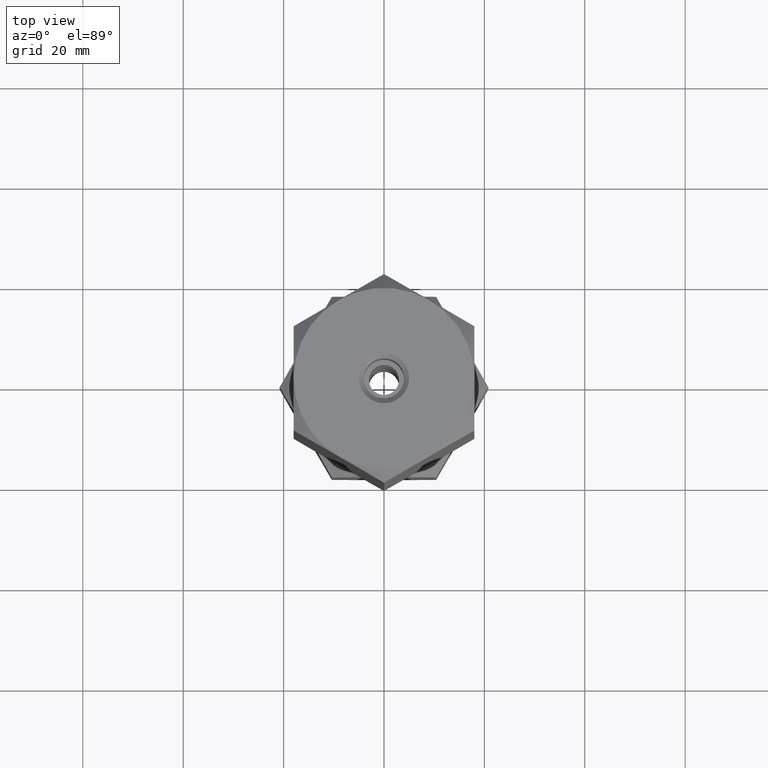
[diagram: clean part render]
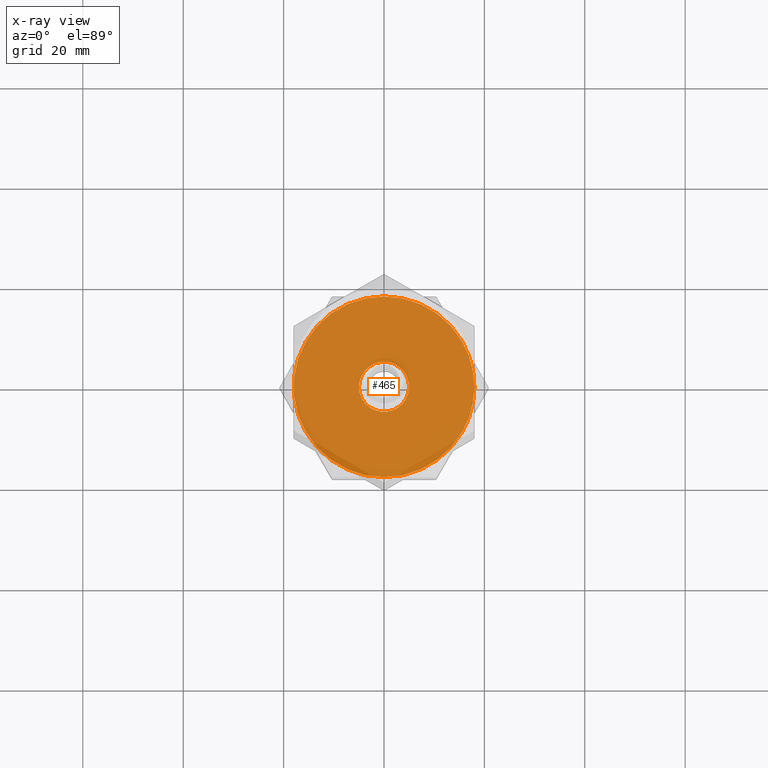
[diagram: x-ray — body ghosted, one internal face saturated and labeled with its STEP entity id]
A machine part, top view, then the same camera in x-ray: the body is ghosted and one INTERNAL B-rep face — a face not visible from any outside direction — is saturated and labeled: STEP entity #465.
In plain terms, the highlighted planar face has unit normal (0, 0, 1).
Its self-contained STEP definition (entity closure, byte-faithful):
#9 = DIRECTION ( 'NONE',  ( 0.000000000000000000, 0.000000000000000000, -1.000000000000000000 ) ) ;
#63 = CARTESIAN_POINT ( 'NONE',  ( 3.004629197474318851E-15, -18.00000000000000000, 33.33333333333330017 ) ) ;
#88 = CARTESIAN_POINT ( 'NONE',  ( 0.000000000000000000, 18.00000000000000000, 33.33333333333330017 ) ) ;
#109 = ORIENTED_EDGE ( 'NONE', *, *, #999, .T. ) ;
#125 = ORIENTED_EDGE ( 'NONE', *, *, #165, .T. ) ;
#126 = CARTESIAN_POINT ( 'NONE',  ( 0.000000000000000000, 0.000000000000000000, 33.33333333333330017 ) ) ;
#152 = CIRCLE ( 'NONE', #582, 18.00000000000000000 ) ;
#165 = EDGE_CURVE ( 'NONE', #1543, #1620, #523, .T. ) ;
#186 = AXIS2_PLACEMENT_3D ( 'NONE', #733, #1995, #573 ) ;
#209 = CARTESIAN_POINT ( 'NONE',  ( -15.58845726811989607, 8.999999999999996447, 33.33333333333330017 ) ) ;
#214 = VERTEX_POINT ( 'NONE', #423 ) ;
#230 = CARTESIAN_POINT ( 'NONE',  ( 0.000000000000000000, 0.000000000000000000, 33.33333333333330017 ) ) ;
#238 = CARTESIAN_POINT ( 'NONE',  ( 0.000000000000000000, 0.000000000000000000, 33.33333333333330017 ) ) ;
#245 = VERTEX_POINT ( 'NONE', #88 ) ;
#246 = PLANE ( 'NONE',  #1421 ) ;
#263 = CARTESIAN_POINT ( 'NONE',  ( 0.000000000000000000, 0.000000000000000000, 33.33333333333330017 ) ) ;
#276 = VERTEX_POINT ( 'NONE', #1254 ) ;
#310 = CARTESIAN_POINT ( 'NONE',  ( 0.000000000000000000, 0.000000000000000000, 33.33333333333330017 ) ) ;
#376 = DIRECTION ( 'NONE',  ( 1.000000000000000000, 0.000000000000000000, 0.000000000000000000 ) ) ;
#423 = CARTESIAN_POINT ( 'NONE',  ( -5.000000000000000000, 0.000000000000000000, 33.33333333333330017 ) ) ;
#444 = DIRECTION ( 'NONE',  ( 1.000000000000000000, 0.000000000000000000, 0.000000000000000000 ) ) ;
#445 = EDGE_CURVE ( 'NONE', #214, #1225, #495, .T. ) ;
#465 = ADVANCED_FACE ( 'NONE', ( #897, #1505 ), #246, .T. ) ;
#495 = CIRCLE ( 'NONE', #1716, 5.000000000000000000 ) ;
#504 = EDGE_CURVE ( 'NONE', #245, #1678, #1948, .T. ) ;
#523 = CIRCLE ( 'NONE', #1019, 18.00000000000000000 ) ;
#524 = DIRECTION ( 'NONE',  ( -1.000000000000000000, 0.000000000000000000, 0.000000000000000000 ) ) ;
#563 = EDGE_LOOP ( 'NONE', ( #109, #125, #667, #1215, #1369, #801, #1820 ) ) ;
#573 = DIRECTION ( 'NONE',  ( 1.000000000000000000, 0.000000000000000000, 0.000000000000000000 ) ) ;
#582 = AXIS2_PLACEMENT_3D ( 'NONE', #126, #601, #444 ) ;
#586 = AXIS2_PLACEMENT_3D ( 'NONE', #823, #9, #524 ) ;
#601 = DIRECTION ( 'NONE',  ( 0.000000000000000000, 0.000000000000000000, 1.000000000000000000 ) ) ;
#606 = CARTESIAN_POINT ( 'NONE',  ( 18.00000000000000000, 0.000000000000000000, 33.33333333333330017 ) ) ;
#653 = CIRCLE ( 'NONE', #1807, 18.00000000000000000 ) ;
#667 = ORIENTED_EDGE ( 'NONE', *, *, #1280, .T. ) ;
#671 = DIRECTION ( 'NONE',  ( -1.000000000000000000, 0.000000000000000000, 0.000000000000000000 ) ) ;
#712 = CARTESIAN_POINT ( 'NONE',  ( 0.000000000000000000, 0.000000000000000000, 33.33333333333330017 ) ) ;
#733 = CARTESIAN_POINT ( 'NONE',  ( 0.000000000000000000, 0.000000000000000000, 33.33333333333330017 ) ) ;
#774 = VERTEX_POINT ( 'NONE', #63 ) ;
#801 = ORIENTED_EDGE ( 'NONE', *, *, #1880, .T. ) ;
#823 = CARTESIAN_POINT ( 'NONE',  ( 0.000000000000000000, 0.000000000000000000, 33.33333333333330017 ) ) ;
#836 = EDGE_LOOP ( 'NONE', ( #1758, #1877 ) ) ;
#847 = CIRCLE ( 'NONE', #1057, 18.00000000000000000 ) ;
#888 = DIRECTION ( 'NONE',  ( 1.000000000000000000, 0.000000000000000000, -0.000000000000000000 ) ) ;
#897 = FACE_BOUND ( 'NONE', #836, .T. ) ;
#905 = DIRECTION ( 'NONE',  ( 1.000000000000000000, 0.000000000000000000, 0.000000000000000000 ) ) ;
#913 = DIRECTION ( 'NONE',  ( 1.000000000000000000, 0.000000000000000000, 0.000000000000000000 ) ) ;
#917 = DIRECTION ( 'NONE',  ( 0.000000000000000000, 0.000000000000000000, 1.000000000000000000 ) ) ;
#962 = CARTESIAN_POINT ( 'NONE',  ( 15.58845726811989252, 9.000000000000003553, 33.33333333333330017 ) ) ;
#999 = EDGE_CURVE ( 'NONE', #1984, #1543, #847, .T. ) ;
#1000 = EDGE_CURVE ( 'NONE', #774, #1984, #152, .T. ) ;
#1019 = AXIS2_PLACEMENT_3D ( 'NONE', #712, #1333, #376 ) ;
#1057 = AXIS2_PLACEMENT_3D ( 'NONE', #1862, #1698, #913 ) ;
#1088 = DIRECTION ( 'NONE',  ( 1.000000000000000000, 0.000000000000000000, 0.000000000000000000 ) ) ;
#1174 = CIRCLE ( 'NONE', #1973, 18.00000000000000000 ) ;
#1215 = ORIENTED_EDGE ( 'NONE', *, *, #504, .T. ) ;
#1224 = DIRECTION ( 'NONE',  ( 0.000000000000000000, 0.000000000000000000, 1.000000000000000000 ) ) ;
#1225 = VERTEX_POINT ( 'NONE', #2011 ) ;
#1239 = DIRECTION ( 'NONE',  ( 0.000000000000000000, 0.000000000000000000, 1.000000000000000000 ) ) ;
#1254 = CARTESIAN_POINT ( 'NONE',  ( -15.58845726811989607, -9.000000000000003553, 33.33333333333330017 ) ) ;
#1280 = EDGE_CURVE ( 'NONE', #1620, #245, #1174, .T. ) ;
#1333 = DIRECTION ( 'NONE',  ( 0.000000000000000000, 0.000000000000000000, 1.000000000000000000 ) ) ;
#1369 = ORIENTED_EDGE ( 'NONE', *, *, #1430, .T. ) ;
#1404 = CARTESIAN_POINT ( 'NONE',  ( 0.000000000000000000, 0.000000000000000000, 33.33333333333330017 ) ) ;
#1421 = AXIS2_PLACEMENT_3D ( 'NONE', #238, #1669, #888 ) ;
#1430 = EDGE_CURVE ( 'NONE', #1678, #276, #1710, .T. ) ;
#1505 = FACE_OUTER_BOUND ( 'NONE', #563, .T. ) ;
#1543 = VERTEX_POINT ( 'NONE', #606 ) ;
#1620 = VERTEX_POINT ( 'NONE', #962 ) ;
#1669 = DIRECTION ( 'NONE',  ( 0.000000000000000000, 0.000000000000000000, 1.000000000000000000 ) ) ;
#1678 = VERTEX_POINT ( 'NONE', #209 ) ;
#1683 = DIRECTION ( 'NONE',  ( 0.000000000000000000, 0.000000000000000000, -1.000000000000000000 ) ) ;
#1698 = DIRECTION ( 'NONE',  ( 0.000000000000000000, 0.000000000000000000, 1.000000000000000000 ) ) ;
#1710 = CIRCLE ( 'NONE', #186, 18.00000000000000000 ) ;
#1714 = CIRCLE ( 'NONE', #586, 5.000000000000000000 ) ;
#1716 = AXIS2_PLACEMENT_3D ( 'NONE', #230, #1683, #671 ) ;
#1758 = ORIENTED_EDGE ( 'NONE', *, *, #445, .T. ) ;
#1807 = AXIS2_PLACEMENT_3D ( 'NONE', #1404, #1224, #905 ) ;
#1820 = ORIENTED_EDGE ( 'NONE', *, *, #1000, .T. ) ;
#1862 = CARTESIAN_POINT ( 'NONE',  ( 0.000000000000000000, 0.000000000000000000, 33.33333333333330017 ) ) ;
#1869 = DIRECTION ( 'NONE',  ( 1.000000000000000000, 0.000000000000000000, 0.000000000000000000 ) ) ;
#1877 = ORIENTED_EDGE ( 'NONE', *, *, #1944, .T. ) ;
#1880 = EDGE_CURVE ( 'NONE', #276, #774, #653, .T. ) ;
#1944 = EDGE_CURVE ( 'NONE', #1225, #214, #1714, .T. ) ;
#1948 = CIRCLE ( 'NONE', #2050, 18.00000000000000000 ) ;
#1973 = AXIS2_PLACEMENT_3D ( 'NONE', #263, #1239, #1869 ) ;
#1984 = VERTEX_POINT ( 'NONE', #2056 ) ;
#1995 = DIRECTION ( 'NONE',  ( 0.000000000000000000, 0.000000000000000000, 1.000000000000000000 ) ) ;
#2011 = CARTESIAN_POINT ( 'NONE',  ( 5.000000000000000000, 6.123233995736766282E-16, 33.33333333333330017 ) ) ;
#2050 = AXIS2_PLACEMENT_3D ( 'NONE', #310, #917, #1088 ) ;
#2056 = CARTESIAN_POINT ( 'NONE',  ( 15.58845726811989429, -9.000000000000001776, 33.33333333333330017 ) ) ;